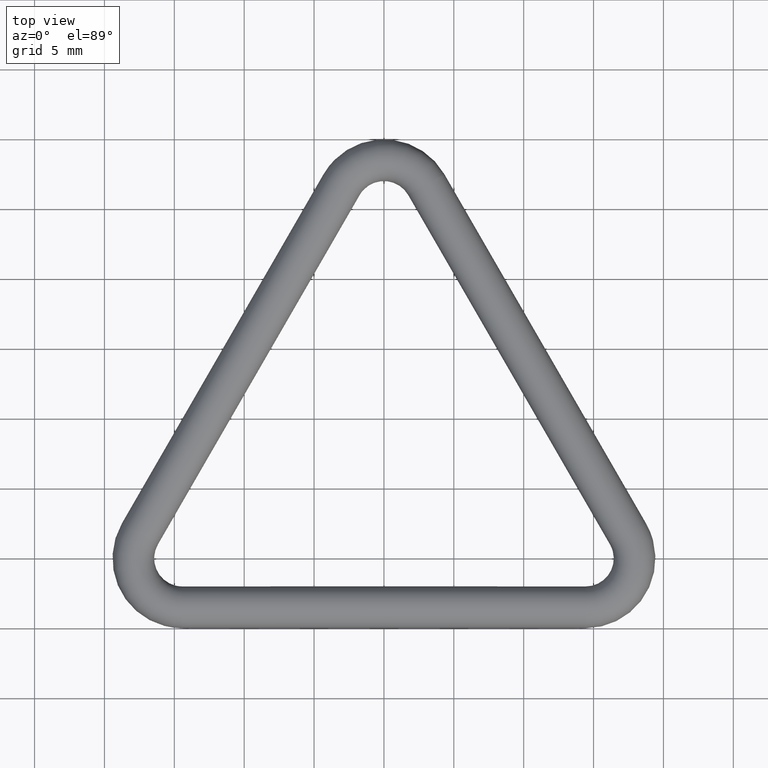
[diagram: clean part render]
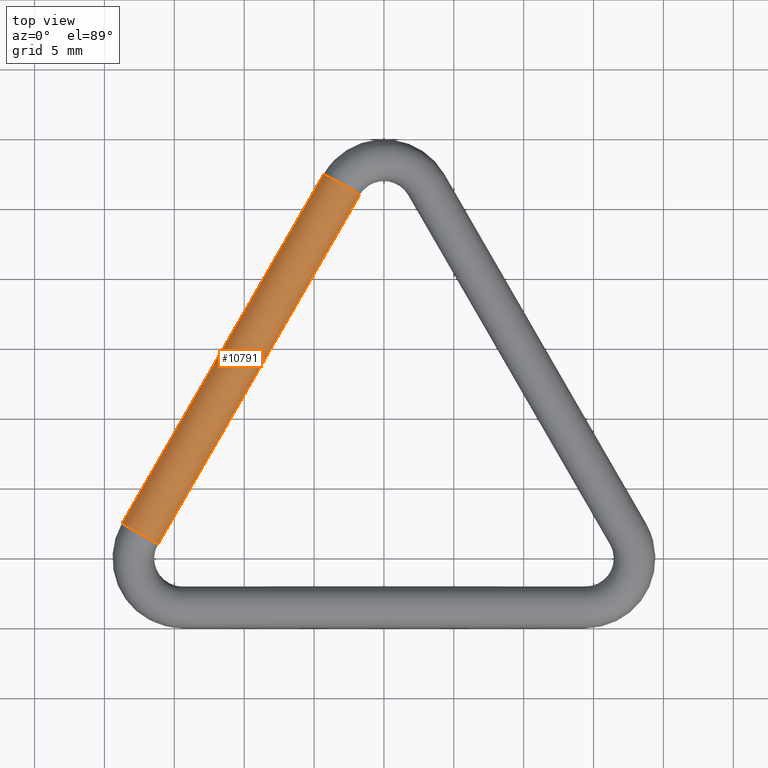
[diagram: same view with one face highlighted and labeled with its STEP entity id]
A machine part, top view. The second image highlights one B-rep face of the part: STEP entity #10791.
In plain terms, the highlighted cylindrical surface (bore or boss wall) has radius 1.5 mm, axis along (-0.5, -0.866, 0).
Its self-contained STEP definition (entity closure, byte-faithful):
#231 = AXIS2_PLACEMENT_3D ( 'NONE', #3319, #4178, #3145 ) ;
#1544 = EDGE_LOOP ( 'NONE', ( #4677 ) ) ;
#1818 = DIRECTION ( 'NONE',  ( -0.4999999999999977800, -0.8660254037844399300, 0.0000000000000000000 ) ) ;
#1905 = DIRECTION ( 'NONE',  ( -0.4999999999999955000, -0.8660254037844413700, 0.0000000000000000000 ) ) ;
#3145 = DIRECTION ( 'NONE',  ( 0.0000000000000000000, 0.0000000000000000000, -1.000000000000000000 ) ) ;
#3319 = CARTESIAN_POINT ( 'NONE',  ( -17.46484564298609900, 6.750000000000006200, 0.0000000000000000000 ) ) ;
#3765 = EDGE_LOOP ( 'NONE', ( #12578 ) ) ;
#4005 = CARTESIAN_POINT ( 'NONE',  ( -3.031088913245542700, 31.75000000000000000, -1.500000000000000000 ) ) ;
#4178 = DIRECTION ( 'NONE',  ( -0.4999999999999955000, -0.8660254037844413700, 0.0000000000000000000 ) ) ;
#4666 = DIRECTION ( 'NONE',  ( 0.0000000000000000000, 0.0000000000000000000, -1.000000000000000000 ) ) ;
#4677 = ORIENTED_EDGE ( 'NONE', *, *, #8587, .T. ) ;
#5023 = VERTEX_POINT ( 'NONE', #4005 ) ;
#5937 = AXIS2_PLACEMENT_3D ( 'NONE', #12428, #1905, #4666 ) ;
#6932 = AXIS2_PLACEMENT_3D ( 'NONE', #9518, #1818, #10408 ) ;
#8523 = VERTEX_POINT ( 'NONE', #11699 ) ;
#8587 = EDGE_CURVE ( 'NONE', #5023, #5023, #12332, .T. ) ;
#9312 = EDGE_CURVE ( 'NONE', #8523, #8523, #11571, .T. ) ;
#9430 = FACE_OUTER_BOUND ( 'NONE', #3765, .T. ) ;
#9518 = CARTESIAN_POINT ( 'NONE',  ( -3.031088913245542700, 31.75000000000000000, 0.0000000000000000000 ) ) ;
#10408 = DIRECTION ( 'NONE',  ( 0.8660254037844397100, -0.4999999999999980000, 0.0000000000000000000 ) ) ;
#10791 = ADVANCED_FACE ( 'NONE', ( #11541, #9430 ), #10792, .T. ) ;
#10792 = CYLINDRICAL_SURFACE ( 'NONE', #6932, 1.500000000000000400 ) ;
#11541 = FACE_OUTER_BOUND ( 'NONE', #1544, .T. ) ;
#11571 = CIRCLE ( 'NONE', #231, 1.500000000000000000 ) ;
#11699 = CARTESIAN_POINT ( 'NONE',  ( -17.46484564298609900, 6.750000000000006200, -1.500000000000000000 ) ) ;
#12332 = CIRCLE ( 'NONE', #5937, 1.500000000000000000 ) ;
#12428 = CARTESIAN_POINT ( 'NONE',  ( -3.031088913245542700, 31.75000000000000000, 0.0000000000000000000 ) ) ;
#12578 = ORIENTED_EDGE ( 'NONE', *, *, #9312, .F. ) ;